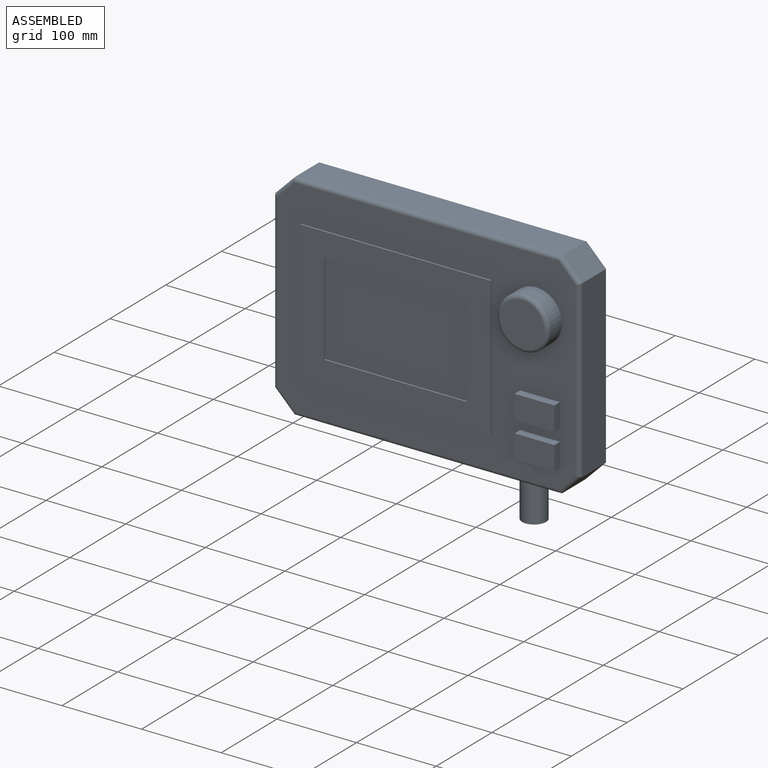
[diagram: assembled view]
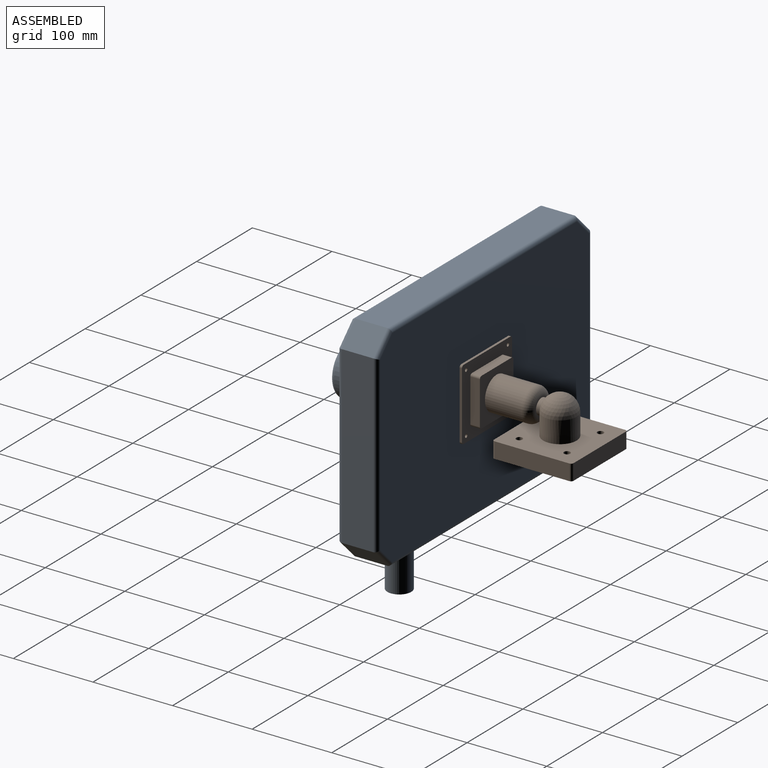
[diagram: assembled view, second angle]
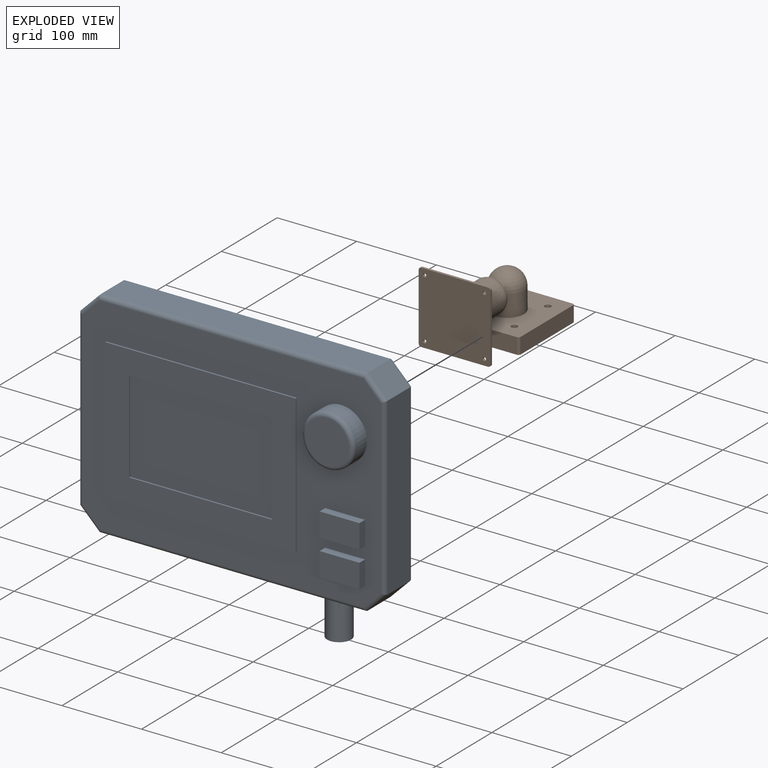
[diagram: exploded view]
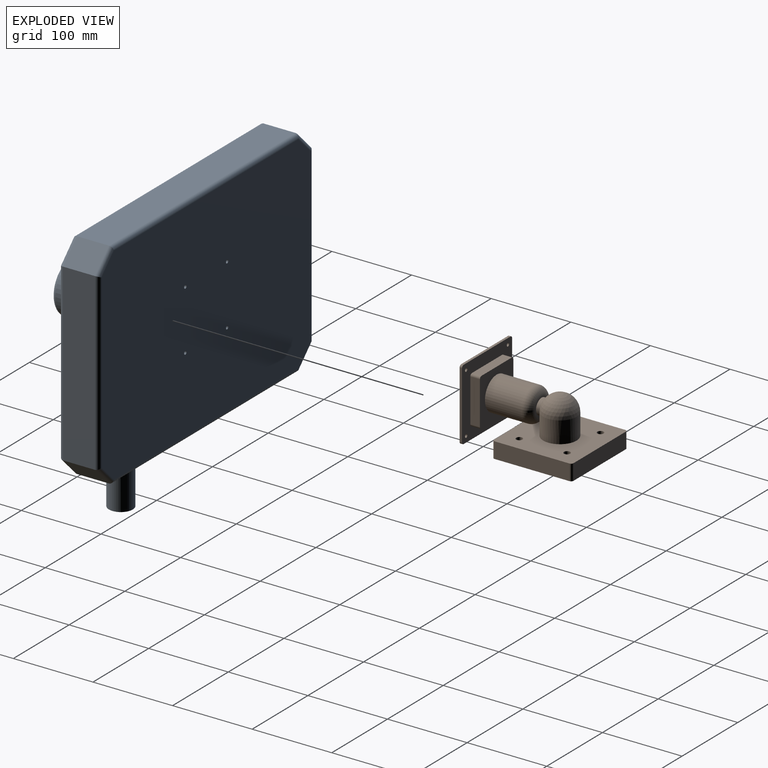
[diagram: exploded view, second angle]
ASSEMBLY  parts=2 mates=2
PART A: 59 faces, bbox 385x75x320 mm
  f0: plane 375x260mm, normal (0,-1,0), area 48181.9mm2, adj f6,f7,f8,f13,f16,f18,f19,f20
  f1: plane 335x40mm, normal (0,0,1), area 13400mm2, adj f30,f31,f45,f52
  f2: plane 220x40mm, normal (-1,0,0), area 8800mm2, adj f29,f30,f44,f53
  f3: plane 335x40mm, normal (0,0,-1), area 12693.1mm2, adj f28,f29,f33,f48,f57
  f4: plane 220x40mm, normal (1,0,0), area 8800mm2, adj f28,f31,f49,f56
  f5: plane 375x260mm, normal (0,1,0), area 96470.3mm2, adj f35,f37,f39,f41,f51,f52,f53,f54
  f6: plane 175.59x2mm, normal (-1,0,0), area 351.2mm2, adj f0,f7,f13,f14
  f7: plane 239.33x2mm, normal (0,0,-1), area 478.7mm2, adj f0,f6,f8,f14
  f8: plane 175.59x2mm, normal (1,0,0), area 351.2mm2, adj f0,f7,f13,f14
  f9: plane 179.33x2mm, normal (0,0,1), area 358.7mm2, adj f10,f12,f14,f15
  f10: plane 115.59x2mm, normal (1,0,0), area 231.2mm2, adj f9,f11,f14,f15
  f11: plane 179.33x2mm, normal (0,0,-1), area 358.7mm2, adj f10,f12,f14,f15
  f12: plane 115.59x2mm, normal (-1,0,0), area 231.2mm2, adj f9,f11,f14,f15
  f13: plane 239.33x2mm, normal (0,0,1), area 478.7mm2, adj f0,f6,f8,f14
  f14: plane 239.33x175.59mm, normal (0,-1,0), area 21295.7mm2, adj f6,f7,f8,f9,f10,f11,f12,f13
  f15: plane 179.33x115.59mm, normal (0,-1,0), area 20729.9mm2, adj f9,f10,f11,f12
  f16: cylinder r=32.5mm len=65mm, axis (0,1,0), area 4084.1mm2, adj f0,f32
  f17: plane 55x55mm, normal (0,-1,0), area 2375.8mm2, adj f32
  f18: plane 30x10mm, normal (-1,0,0), area 300mm2, adj f0,f19,f21,f22
  f19: plane 50x10mm, normal (0,0,-1), area 500mm2, adj f0,f18,f20,f22
  f20: plane 30x10mm, normal (1,0,0), area 300mm2, adj f0,f19,f21,f22
  f21: plane 50x10mm, normal (0,0,1), area 500mm2, adj f0,f18,f20,f22
  f22: plane 50x30mm, normal (0,-1,0), area 1500mm2, adj f18,f19,f20,f21
  f23: plane 30x10mm, normal (-1,0,0), area 300mm2, adj f0,f24,f26,f27
  f24: plane 50x10mm, normal (0,0,-1), area 500mm2, adj f0,f23,f25,f27
  f25: plane 30x10mm, normal (1,0,0), area 300mm2, adj f0,f24,f26,f27
  f26: plane 50x10mm, normal (0,0,1), area 500mm2, adj f0,f23,f25,f27
  f27: plane 50x30mm, normal (0,-1,0), area 1500mm2, adj f23,f24,f25,f26
  f28: plane 40x25mm, normal (0.71,0,-0.71), area 1414.2mm2, adj f3,f4,f50,f58
  f29: plane 40x25mm, normal (-0.71,0,-0.71), area 1414.2mm2, adj f2,f3,f46,f55
  f30: plane 40x25mm, normal (-0.71,0,0.71), area 1414.2mm2, adj f1,f2,f43,f51
  f31: plane 40x25mm, normal (0.71,0,0.71), area 1414.2mm2, adj f1,f4,f47,f54
  f32: torus R=27.5mm, axis (0,-1,0), area 1514.2mm2, adj f16,f17
  f33: cylinder r=15mm len=50mm, axis (0,0,1), area 4712.4mm2, adj f3,f34
  f34: plane 30x30mm, normal (0,0,-1), area 706.9mm2, adj f33
  f35: cylinder r=2.1mm len=10mm, axis (0,1,0), area 131.9mm2, adj f5,f36
  f36: cone r=0mm half-angle=59deg, axis (0,1,0), area 16.2mm2, adj f35
  f37: cylinder r=2.1mm len=10mm, axis (0,1,0), area 131.9mm2, adj f5,f38
  f38: cone r=0mm half-angle=59deg, axis (0,1,0), area 16.2mm2, adj f37
  f39: cylinder r=2.1mm len=10mm, axis (0,1,0), area 131.9mm2, adj f5,f40
  f40: cone r=0mm half-angle=59deg, axis (0,1,0), area 16.2mm2, adj f39
  f41: cylinder r=2.1mm len=10mm, axis (0,1,0), area 131.9mm2, adj f5,f42
  f42: cone r=0mm half-angle=59deg, axis (0,1,0), area 16.2mm2, adj f41
  f43: cylinder r=5mm len=28.54mm, axis (0.71,0,0.71), area 265.9mm2, adj f0,f30,f44,f45
  f44: cylinder r=5mm len=220mm, axis (0,0,1), area 1716.1mm2, adj f0,f2,f43,f46
  f45: cylinder r=5mm len=335mm, axis (1,0,0), area 2619.3mm2, adj f0,f1,f43,f47
  f46: cylinder r=5mm len=28.54mm, axis (0.71,0,-0.71), area 265.9mm2, adj f0,f29,f44,f48
  f47: cylinder r=5mm len=28.54mm, axis (-0.71,0,0.71), area 265.9mm2, adj f0,f31,f45,f49
  f48: cylinder r=5mm len=335mm, axis (-1,0,0), area 2619.3mm2, adj f0,f3,f46,f50
  f49: cylinder r=5mm len=220mm, axis (0,0,-1), area 1716.1mm2, adj f0,f4,f47,f50
  f50: cylinder r=5mm len=28.54mm, axis (-0.71,0,-0.71), area 265.9mm2, adj f0,f28,f48,f49
  f51: cylinder r=5mm len=28.54mm, axis (0.71,0,0.71), area 265.9mm2, adj f5,f30,f52,f53
  f52: cylinder r=5mm len=335mm, axis (-1,0,0), area 2619.3mm2, adj f1,f5,f51,f54
  f53: cylinder r=5mm len=220mm, axis (0,0,-1), area 1716.1mm2, adj f2,f5,f51,f55
  f54: cylinder r=5mm len=28.54mm, axis (-0.71,0,0.71), area 265.9mm2, adj f5,f31,f52,f56
  f55: cylinder r=5mm len=28.54mm, axis (0.71,0,-0.71), area 265.9mm2, adj f5,f29,f53,f57
  f56: cylinder r=5mm len=220mm, axis (0,0,1), area 1716.1mm2, adj f4,f5,f54,f58
  f57: cylinder r=5mm len=335mm, axis (1,0,0), area 2619.3mm2, adj f3,f5,f55,f58
  f58: cylinder r=5mm len=28.54mm, axis (-0.71,0,-0.71), area 265.9mm2, adj f5,f28,f56,f57
PART B: 43 faces, bbox 100x144.5x92 mm
  f0: plane 54x12mm, normal (-1,0,0), area 648mm2, adj f16,f21,f35,f38
  f1: plane 54x12mm, normal (0,0,-1), area 648mm2, adj f16,f21,f35,f36
  f2: plane 54x12mm, normal (1,0,0), area 648mm2, adj f16,f21,f36,f37
  f3: plane 54x12mm, normal (0,0,1), area 648mm2, adj f16,f21,f37,f38
  f4: cylinder r=21mm len=46.5mm, axis (0,1,0), area 6135.5mm2, adj f15,f16
  f5: cylinder r=10mm len=20mm, axis (0,1,0), area 244.4mm2, adj f6,f7,f14
  f6: cylinder r=21mm len=42mm, axis (0,0,-1), area 3400.5mm2, adj f5,f7,f12
  f7: sphere r=21mm, area 2603.7mm2, adj f5,f6
  f8: plane 94x20mm, normal (-1,0,0), area 1880mm2, adj f12,f13,f39,f42
  f9: plane 94x20mm, normal (0,-1,0), area 1880mm2, adj f12,f13,f39,f40
  f10: plane 94x20mm, normal (1,0,0), area 1880mm2, adj f12,f13,f40,f41
  f11: plane 94x20mm, normal (0,1,0), area 1880mm2, adj f12,f13,f41,f42
  f12: plane 100x100mm, normal (0,0,1), area 8415.7mm2, adj f6,f8,f9,f10,f11,f27,f28,f29
  f13: plane 100x100mm, normal (0,0,-1), area 9801.1mm2, adj f8,f9,f10,f11,f27,f28,f29,f30
  f14: plane 22x22mm, normal (0,1,0), area 66mm2, adj f5,f15
  f15: torus R=11mm, axis (0,-1,0), area 1714mm2, adj f4,f14
  f16: plane 60x60mm, normal (0,1,0), area 2206.8mm2, adj f0,f1,f2,f3,f4,f35,f36,f37
  f17: plane 84x3mm, normal (-1,0,0), area 252mm2, adj f21,f22,f31,f34
  f18: plane 84x3mm, normal (0,0,-1), area 252mm2, adj f21,f22,f31,f32
  f19: plane 84x3mm, normal (1,0,0), area 252mm2, adj f21,f22,f32,f33
  f20: plane 84x3mm, normal (0,0,1), area 252mm2, adj f21,f22,f33,f34
  f21: plane 90x90mm, normal (0,1,0), area 4444.6mm2, adj f0,f1,f2,f3,f17,f18,f19,f20
  f22: plane 90x90mm, normal (0,-1,0), area 8036.9mm2, adj f17,f18,f19,f20,f23,f24,f25,f26
  f23: cylinder r=2.1mm len=4.2mm, axis (0,-1,0), area 39.6mm2, adj f21,f22
  f24: cylinder r=2.1mm len=4.2mm, axis (0,-1,0), area 39.6mm2, adj f21,f22
  f25: cylinder r=2.1mm len=4.2mm, axis (0,-1,0), area 39.6mm2, adj f21,f22
  f26: cylinder r=2.1mm len=4.2mm, axis (0,-1,0), area 39.6mm2, adj f21,f22
  f27: cylinder r=3.9mm len=20mm, axis (0,0,-1), area 490.1mm2, adj f12,f13
  f28: cylinder r=3.9mm len=20mm, axis (0,0,-1), area 490.1mm2, adj f12,f13
  f29: cylinder r=3.9mm len=20mm, axis (0,0,-1), area 490.1mm2, adj f12,f13
  f30: cylinder r=3.9mm len=20mm, axis (0,0,-1), area 490.1mm2, adj f12,f13
  f31: cylinder r=3mm len=3mm, axis (0,-1,0), area 14.1mm2, adj f17,f18,f21,f22
  f32: cylinder r=3mm len=3mm, axis (0,1,0), area 14.1mm2, adj f18,f19,f21,f22
  f33: cylinder r=3mm len=3mm, axis (0,-1,0), area 14.1mm2, adj f19,f20,f21,f22
  f34: cylinder r=3mm len=3mm, axis (0,1,0), area 14.1mm2, adj f17,f20,f21,f22
  f35: cylinder r=3mm len=12mm, axis (0,-1,0), area 56.5mm2, adj f0,f1,f16,f21
  f36: cylinder r=3mm len=12mm, axis (0,1,0), area 56.5mm2, adj f1,f2,f16,f21
  f37: cylinder r=3mm len=12mm, axis (0,-1,0), area 56.5mm2, adj f2,f3,f16,f21
  f38: cylinder r=3mm len=12mm, axis (0,1,0), area 56.5mm2, adj f0,f3,f16,f21
  f39: cylinder r=3mm len=20mm, axis (0,0,-1), area 94.2mm2, adj f8,f9,f12,f13
  f40: cylinder r=3mm len=20mm, axis (0,0,1), area 94.2mm2, adj f9,f10,f12,f13
  f41: cylinder r=3mm len=20mm, axis (0,0,-1), area 94.2mm2, adj f10,f11,f12,f13
  f42: cylinder r=3mm len=20mm, axis (0,0,1), area 94.2mm2, adj f8,f11,f12,f13
PLACE A t=(29.23,-37.48,-236.67)mm
PLACE B t=(29.23,57.02,-146.17)mm
MATE revolute A.f37 <-> B.f23  axis (0,1,0) through (-8.27,-37.48,-61.67)mm
MATE cylindrical A.f35 <-> B.f24  axis (0,1,0) through (66.73,-37.48,-61.67)mm
